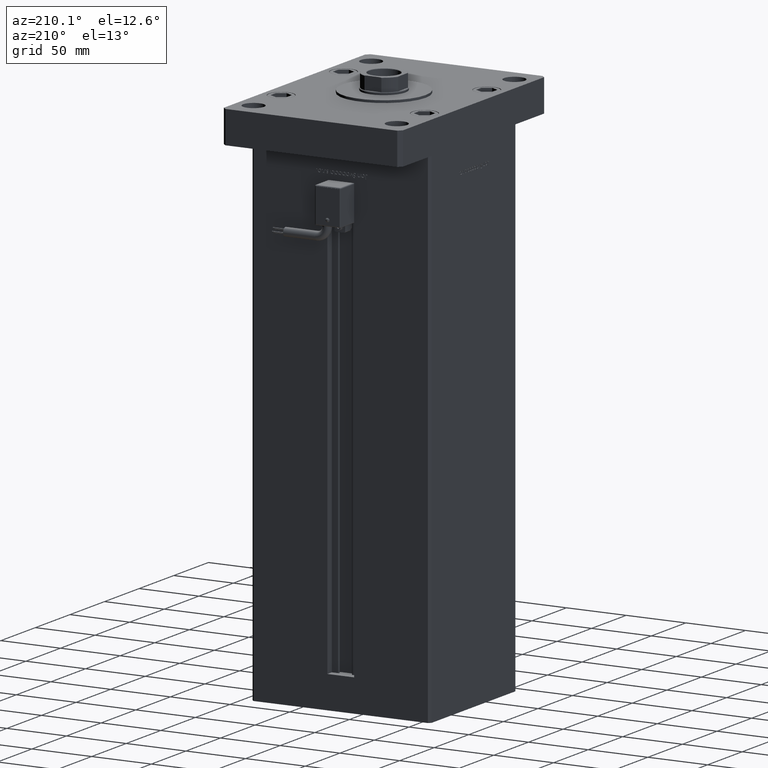
[diagram: clean part render]
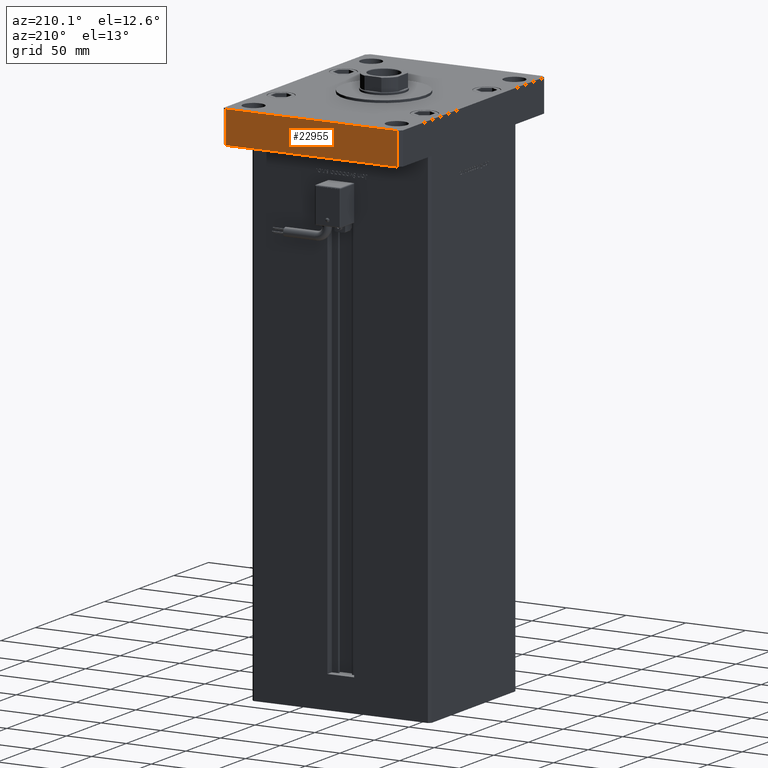
[diagram: same view with one face highlighted and labeled with its STEP entity id]
A machine part, auxiliary view. The second image highlights one B-rep face of the part: STEP entity #22955.
In plain terms, the highlighted planar face has unit normal (0, -1, 0).
Its self-contained STEP definition (entity closure, byte-faithful):
#3915 = CARTESIAN_POINT ( 'NONE',  ( 72.00000000000004263, 105.0000000000000284, 0.000000000000000000 ) ) ;
#4324 = VECTOR ( 'NONE', #46076, 1000.000000000000000 ) ;
#6321 = VERTEX_POINT ( 'NONE', #47261 ) ;
#8677 = EDGE_CURVE ( 'NONE', #28716, #16860, #54596, .T. ) ;
#9624 = EDGE_LOOP ( 'NONE', ( #46323, #22927, #43338, #18399 ) ) ;
#10175 = VECTOR ( 'NONE', #41417, 1000.000000000000000 ) ;
#12223 = EDGE_CURVE ( 'NONE', #28716, #53370, #32993, .T. ) ;
#14231 = CARTESIAN_POINT ( 'NONE',  ( -72.00000000000002842, 105.0000000000000000, 27.00000000000000000 ) ) ;
#14273 = VECTOR ( 'NONE', #20460, 1000.000000000000000 ) ;
#15665 = CARTESIAN_POINT ( 'NONE',  ( 72.00000000000004263, 105.0000000000000284, 27.00000000000000000 ) ) ;
#16378 = VECTOR ( 'NONE', #47091, 1000.000000000000000 ) ;
#16860 = VERTEX_POINT ( 'NONE', #3915 ) ;
#18399 = ORIENTED_EDGE ( 'NONE', *, *, #8677, .T. ) ;
#20460 = DIRECTION ( 'NONE',  ( -1.000000000000000000, -1.927470528863118062E-16, 0.000000000000000000 ) ) ;
#21084 = DIRECTION ( 'NONE',  ( 1.000000000000000000, 1.927470528863118309E-16, 0.000000000000000000 ) ) ;
#22030 = EDGE_CURVE ( 'NONE', #53370, #6321, #42271, .T. ) ;
#22927 = ORIENTED_EDGE ( 'NONE', *, *, #22030, .F. ) ;
#22955 = ADVANCED_FACE ( 'NONE', ( #25355 ), #55194, .F. ) ;
#23746 = EDGE_CURVE ( 'NONE', #16860, #6321, #24071, .T. ) ;
#24071 = LINE ( 'NONE', #25179, #10175 ) ;
#24641 = CARTESIAN_POINT ( 'NONE',  ( -72.00000000000002842, 105.0000000000000000, 27.00000000000000000 ) ) ;
#25179 = CARTESIAN_POINT ( 'NONE',  ( 72.00000000000004263, 105.0000000000000284, 0.000000000000000000 ) ) ;
#25355 = FACE_OUTER_BOUND ( 'NONE', #9624, .T. ) ;
#28251 = AXIS2_PLACEMENT_3D ( 'NONE', #42703, #50672, #21084 ) ;
#28716 = VERTEX_POINT ( 'NONE', #37483 ) ;
#32993 = LINE ( 'NONE', #54860, #14273 ) ;
#37483 = CARTESIAN_POINT ( 'NONE',  ( 72.00000000000004263, 105.0000000000000284, 27.00000000000000000 ) ) ;
#41417 = DIRECTION ( 'NONE',  ( -1.000000000000000000, -1.927470528863118062E-16, 0.000000000000000000 ) ) ;
#42271 = LINE ( 'NONE', #24641, #16378 ) ;
#42703 = CARTESIAN_POINT ( 'NONE',  ( 72.00000000000004263, 105.0000000000000284, 27.00000000000000000 ) ) ;
#43338 = ORIENTED_EDGE ( 'NONE', *, *, #12223, .F. ) ;
#46076 = DIRECTION ( 'NONE',  ( -0.000000000000000000, -0.000000000000000000, -1.000000000000000000 ) ) ;
#46323 = ORIENTED_EDGE ( 'NONE', *, *, #23746, .T. ) ;
#47091 = DIRECTION ( 'NONE',  ( -0.000000000000000000, -0.000000000000000000, -1.000000000000000000 ) ) ;
#47261 = CARTESIAN_POINT ( 'NONE',  ( -72.00000000000002842, 105.0000000000000000, 0.000000000000000000 ) ) ;
#50672 = DIRECTION ( 'NONE',  ( 1.927470528863118309E-16, -1.000000000000000000, 0.000000000000000000 ) ) ;
#53370 = VERTEX_POINT ( 'NONE', #14231 ) ;
#54596 = LINE ( 'NONE', #15665, #4324 ) ;
#54860 = CARTESIAN_POINT ( 'NONE',  ( 72.00000000000004263, 105.0000000000000284, 27.00000000000000000 ) ) ;
#55194 = PLANE ( 'NONE',  #28251 ) ;